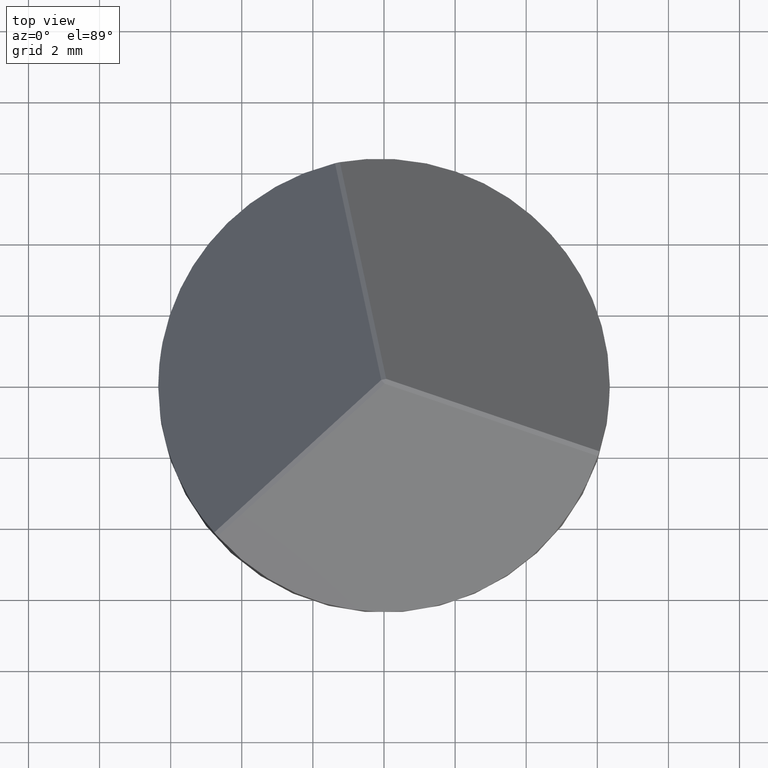
[diagram: clean part render]
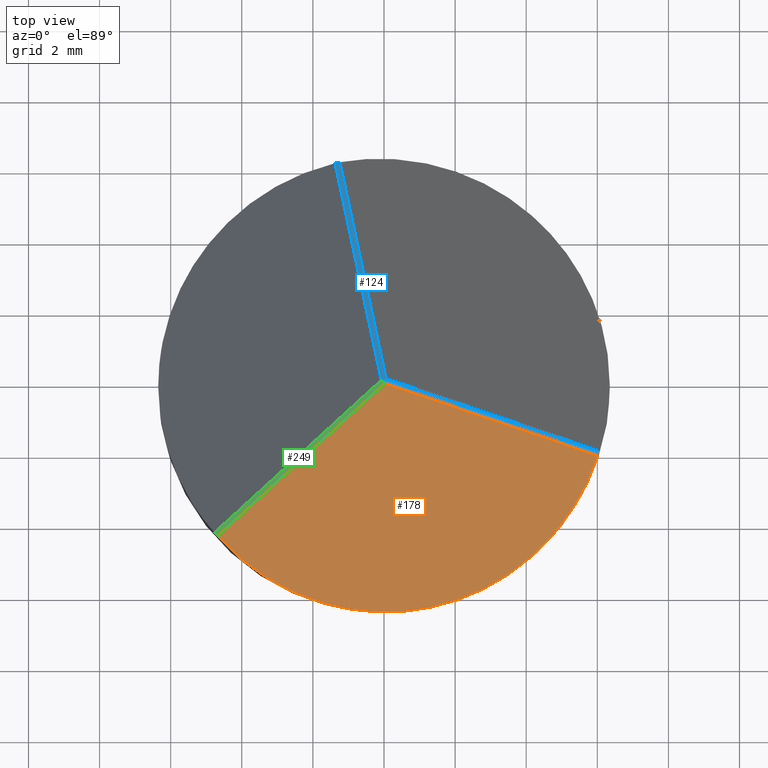
[diagram: same view with three faces highlighted in distinct colors, each labeled with its STEP entity id]
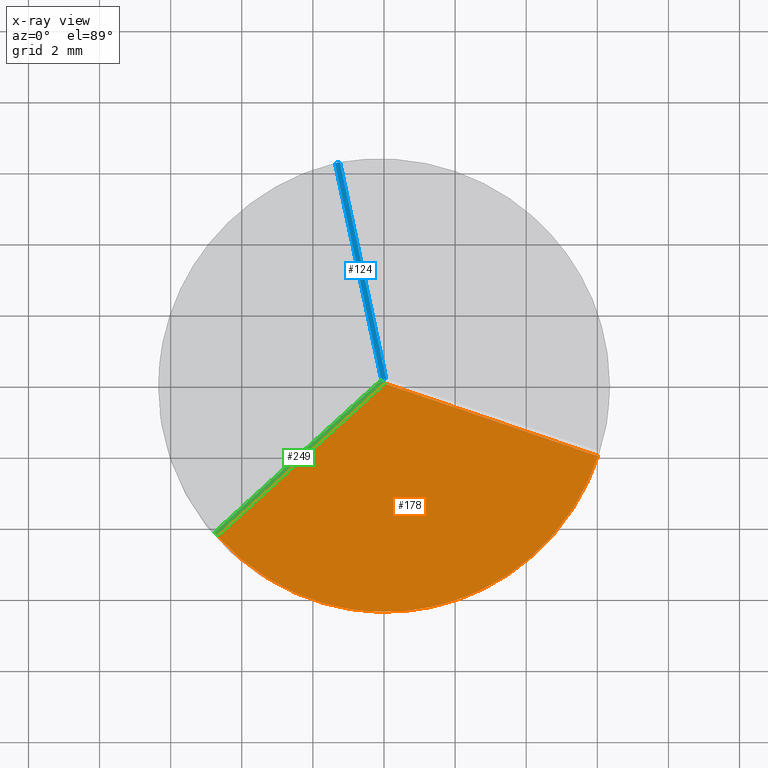
[diagram: x-ray of the same camera — body ghosted, the three highlighted faces saturated]
A machine part, top view with three faces highlighted in distinct colors.
The next image is the same camera in x-ray (body ghosted, the three faces saturated) — at least one of them is partly hidden behind the body in this view.
Their STEP definitions:

[orange] entity #178 — the highlighted planar face has unit normal (0.1684, -0.799, 0.5774).
#1 = ORIENTED_EDGE ( 'NONE', *, *, #110, .T. ) ;
#28 = VERTEX_POINT ( 'NONE', #85 ) ;
#33 = CARTESIAN_POINT ( 'NONE',  ( -1.020309708082631550, -8.280476711917238219, -1.671065411290754588 ) ) ;
#42 = LINE ( 'NONE', #237, #65 ) ;
#50 = ORIENTED_EDGE ( 'NONE', *, *, #364, .T. ) ;
#65 = VECTOR ( 'NONE', #118, 1000.000000000000114 ) ;
#85 = CARTESIAN_POINT ( 'NONE',  ( -4.678904995037512116, -4.293058122994961145, 4.913675856748716875 ) ) ;
#109 = ORIENTED_EDGE ( 'NONE', *, *, #164, .T. ) ;
#110 = EDGE_CURVE ( 'NONE', #28, #151, #148, .T. ) ;
#118 = DIRECTION ( 'NONE',  ( -0.6077332452617947300, -0.5452769656516170960, -0.5773502691896250649 ) ) ;
#126 = FACE_OUTER_BOUND ( 'NONE', #220, .T. ) ;
#140 = CARTESIAN_POINT ( 'NONE',  ( 0.01683570817219707388, -0.07989509119469048737, 9.374658006696643398 ) ) ;
#141 = VECTOR ( 'NONE', #275, 1000.000000000000114 ) ;
#142 = CARTESIAN_POINT ( 'NONE',  ( 6.013412275601540458, -2.039944313858764513, 4.913675856748660919 ) ) ;
#148 =( BOUNDED_CURVE ( )  B_SPLINE_CURVE ( 3, ( #169, #33, #328, #142 ),
 .UNSPECIFIED., .F., .T. ) 
 B_SPLINE_CURVE_WITH_KNOTS ( ( 4, 4 ),
 ( 5.247123525991984394, 7.319247088367180964 ),
 .UNSPECIFIED. ) 
 CURVE ( )  GEOMETRIC_REPRESENTATION_ITEM ( )  RATIONAL_B_SPLINE_CURVE ( ( 1.000000000000000000, 0.6730751062543968155, 0.6730751062543968155, 1.000000000000000000 ) ) 
 REPRESENTATION_ITEM ( '' )  );
#151 = VERTEX_POINT ( 'NONE', #182 ) ;
#154 = CARTESIAN_POINT ( 'NONE',  ( 4.191524909123932829, -1.444439716145159647, 6.269017013437427011 ) ) ;
#164 = EDGE_CURVE ( 'NONE', #151, #256, #279, .T. ) ;
#169 = CARTESIAN_POINT ( 'NONE',  ( -4.678904995037512116, -4.293058122994961145, 4.913675856748716875 ) ) ;
#178 = ADVANCED_FACE ( 'NONE', ( #126 ), #248, .T. ) ;
#182 = CARTESIAN_POINT ( 'NONE',  ( 6.013412275601540458, -2.039944313858764513, 4.913675856748660919 ) ) ;
#215 = DIRECTION ( 'NONE',  ( 0.000000000000000000, -0.5857106597838069861, -0.8105202175242870455 ) ) ;
#220 = EDGE_LOOP ( 'NONE', ( #109, #50, #1 ) ) ;
#237 = CARTESIAN_POINT ( 'NONE',  ( -3.252239202108292648, -3.013009679648221528, 6.269017013437423458 ) ) ;
#244 = AXIS2_PLACEMENT_3D ( 'NONE', #334, #362, #215 ) ;
#248 = PLANE ( 'NONE',  #244 ) ;
#256 = VERTEX_POINT ( 'NONE', #140 ) ;
#275 = DIRECTION ( 'NONE',  ( -0.7760903269836925134, 0.2536739462952641855, 0.5773502691896250649 ) ) ;
#279 = LINE ( 'NONE', #154, #141 ) ;
#328 = CARTESIAN_POINT ( 'NONE',  ( 4.274947424087383041, -7.164645908787123929, -1.671065411290782565 ) ) ;
#334 = CARTESIAN_POINT ( 'NONE',  ( 0.9224499988434438080, -4.377554304598696433, 3.163376020178197301 ) ) ;
#362 = DIRECTION ( 'NONE',  ( 0.1683570817218978666, -0.7989509119468806153, 0.5773502691896265082 ) ) ;
#364 = EDGE_CURVE ( 'NONE', #256, #28, #42, .T. ) ;

[blue] entity #124 — the highlighted planar face has unit normal (0.119, -0.5649, -0.8165).
#11 = DIRECTION ( 'NONE',  ( 0.1190464341463334241, -0.5649436076728147071, -0.8164965809277265896 ) ) ;
#14 = DIRECTION ( 'NONE',  ( 0.1683570817218979776, -0.7989509119468815035, 0.5773502691896249539 ) ) ;
#19 = VERTEX_POINT ( 'NONE', #351 ) ;
#22 = CARTESIAN_POINT ( 'NONE',  ( -1.240062539693429722, 6.227739951029515275, 4.913675856748689341 ) ) ;
#27 = VERTEX_POINT ( 'NONE', #172 ) ;
#37 = EDGE_CURVE ( 'NONE', #195, #135, #349, .T. ) ;
#56 = EDGE_CURVE ( 'NONE', #27, #19, #239, .T. ) ;
#66 = PLANE ( 'NONE',  #202 ) ;
#73 = CARTESIAN_POINT ( 'NONE',  ( -1.378444896918001428, 6.198579649093872490, 4.913675856748705328 ) ) ;
#84 = DIRECTION ( 'NONE',  ( -0.9785110319005749790, -0.2061944724013522467, -0.000000000000000000 ) ) ;
#89 = FACE_OUTER_BOUND ( 'NONE', #181, .T. ) ;
#117 = CARTESIAN_POINT ( 'NONE',  ( -0.8448409661450662078, 4.352186909969163686, 6.269017013437423458 ) ) ;
#124 = ADVANCED_FACE ( 'NONE', ( #89 ), #66, .F. ) ;
#129 = CARTESIAN_POINT ( 'NONE',  ( -1.332426640923746186, 6.208813224159672295, 4.913304656743201271 ) ) ;
#135 = VERTEX_POINT ( 'NONE', #247 ) ;
#138 = EDGE_CURVE ( 'NONE', #19, #195, #188, .T. ) ;
#153 = VECTOR ( 'NONE', #14, 1000.000000000000227 ) ;
#155 = VECTOR ( 'NONE', #84, 1000.000000000000114 ) ;
#160 = ORIENTED_EDGE ( 'NONE', *, *, #138, .F. ) ;
#165 = ORIENTED_EDGE ( 'NONE', *, *, #37, .F. ) ;
#172 = CARTESIAN_POINT ( 'NONE',  ( -0.07760903269836591511, 0.02536739462952482260, 9.374658006696643398 ) ) ;
#181 = EDGE_LOOP ( 'NONE', ( #160, #242, #219, #165 ) ) ;
#187 = CARTESIAN_POINT ( 'NONE',  ( -1.240062539693429722, 6.227739951029515275, 4.913675856748689341 ) ) ;
#188 =( BOUNDED_CURVE ( )  B_SPLINE_CURVE ( 3, ( #73, #129, #336, #22 ),
 .UNSPECIFIED., .F., .F. ) 
 B_SPLINE_CURVE_WITH_KNOTS ( ( 4, 4 ),
 ( 6.272049537170588884, 6.294321077188590685 ),
 .UNSPECIFIED. ) 
 CURVE ( )  GEOMETRIC_REPRESENTATION_ITEM ( )  RATIONAL_B_SPLINE_CURVE ( ( 1.000000000000000000, 0.9999586653025819283, 0.9999586653025819283, 1.000000000000000000 ) ) 
 REPRESENTATION_ITEM ( '' )  );
#195 = VERTEX_POINT ( 'NONE', #187 ) ;
#202 = AXIS2_PLACEMENT_3D ( 'NONE', #259, #11, #245 ) ;
#219 = ORIENTED_EDGE ( 'NONE', *, *, #318, .F. ) ;
#229 = DIRECTION ( 'NONE',  ( -0.1683570817218979776, 0.7989509119468816145, -0.5773502691896250649 ) ) ;
#239 = LINE ( 'NONE', #356, #306 ) ;
#242 = ORIENTED_EDGE ( 'NONE', *, *, #56, .F. ) ;
#245 = DIRECTION ( 'NONE',  ( -0.1683570817218979776, 0.7989509119468816145, -0.5773502691896250649 ) ) ;
#247 = CARTESIAN_POINT ( 'NONE',  ( 0.06077332452618703501, 0.05452769656516021773, 9.374658006696643398 ) ) ;
#259 = CARTESIAN_POINT ( 'NONE',  ( -0.9832233233696184849, 4.323026608033527118, 6.269017013437423458 ) ) ;
#306 = VECTOR ( 'NONE', #229, 1000.000000000000114 ) ;
#318 = EDGE_CURVE ( 'NONE', #135, #27, #323, .T. ) ;
#323 = LINE ( 'NONE', #350, #155 ) ;
#336 = CARTESIAN_POINT ( 'NONE',  ( -1.286297281772450285, 6.218533726598914235, 4.913304656743201271 ) ) ;
#349 = LINE ( 'NONE', #117, #153 ) ;
#350 = CARTESIAN_POINT ( 'NONE',  ( -0.07760903269836591511, 0.02536739462952482260, 9.374658006696643398 ) ) ;
#351 = CARTESIAN_POINT ( 'NONE',  ( -1.378444896918001428, 6.198579649093872490, 4.913675856748705328 ) ) ;
#356 = CARTESIAN_POINT ( 'NONE',  ( -0.9832233233696189290, 4.323026608033527118, 6.269017013437423458 ) ) ;

[green] entity #249 — the highlighted planar face has unit normal (0.4297, 0.3856, -0.8165).
#8 = DIRECTION ( 'NONE',  ( -0.6678251671697869041, 0.7443181753085479357, 0.000000000000000000 ) ) ;
#10 = CARTESIAN_POINT ( 'NONE',  ( -0.07760903269836591511, 0.02536739462952482260, 9.374658006696643398 ) ) ;
#20 = CARTESIAN_POINT ( 'NONE',  ( -3.346683942978853743, -2.907747193824004928, 6.269017013437424346 ) ) ;
#27 = VERTEX_POINT ( 'NONE', #172 ) ;
#28 = VERTEX_POINT ( 'NONE', #85 ) ;
#31 = EDGE_CURVE ( 'NONE', #28, #273, #74, .T. ) ;
#34 = AXIS2_PLACEMENT_3D ( 'NONE', #113, #230, #293 ) ;
#42 = LINE ( 'NONE', #237, #65 ) ;
#49 = VECTOR ( 'NONE', #102, 999.9999999999998863 ) ;
#53 = EDGE_LOOP ( 'NONE', ( #316, #282, #162, #284 ) ) ;
#61 = CARTESIAN_POINT ( 'NONE',  ( -4.742259540638738002, -4.223232986133282019, 4.913304656743202159 ) ) ;
#65 = VECTOR ( 'NONE', #118, 1000.000000000000114 ) ;
#74 =( BOUNDED_CURVE ( )  B_SPLINE_CURVE ( 3, ( #207, #295, #61, #208 ),
 .UNSPECIFIED., .F., .T. ) 
 B_SPLINE_CURVE_WITH_KNOTS ( ( 4, 4 ),
 ( 6.272049537170585332, 6.294321077188586244 ),
 .UNSPECIFIED. ) 
 CURVE ( )  GEOMETRIC_REPRESENTATION_ITEM ( )  RATIONAL_B_SPLINE_CURVE ( ( 1.000000000000000000, 0.9999586653025819283, 0.9999586653025819283, 1.000000000000000000 ) ) 
 REPRESENTATION_ITEM ( '' )  );
#85 = CARTESIAN_POINT ( 'NONE',  ( -4.678904995037512116, -4.293058122994961145, 4.913675856748716875 ) ) ;
#102 = DIRECTION ( 'NONE',  ( 0.6077332452617947300, 0.5452769656516172070, 0.5773502691896250649 ) ) ;
#113 = CARTESIAN_POINT ( 'NONE',  ( -3.252239202108292648, -3.013009679648221972, 6.269017013437423458 ) ) ;
#118 = DIRECTION ( 'NONE',  ( -0.6077332452617947300, -0.5452769656516170960, -0.5773502691896250649 ) ) ;
#140 = CARTESIAN_POINT ( 'NONE',  ( 0.01683570817219707388, -0.07989509119469048737, 9.374658006696643398 ) ) ;
#152 = LINE ( 'NONE', #20, #49 ) ;
#162 = ORIENTED_EDGE ( 'NONE', *, *, #31, .F. ) ;
#172 = CARTESIAN_POINT ( 'NONE',  ( -0.07760903269836591511, 0.02536739462952482260, 9.374658006696643398 ) ) ;
#175 = LINE ( 'NONE', #10, #360 ) ;
#196 = EDGE_CURVE ( 'NONE', #273, #27, #152, .T. ) ;
#200 = FACE_OUTER_BOUND ( 'NONE', #53, .T. ) ;
#205 = PLANE ( 'NONE',  #34 ) ;
#207 = CARTESIAN_POINT ( 'NONE',  ( -4.678904995037512116, -4.293058122994961145, 4.913675856748716875 ) ) ;
#208 = CARTESIAN_POINT ( 'NONE',  ( -4.773349735908087865, -4.187795637170729002, 4.913675856748678683 ) ) ;
#227 = CARTESIAN_POINT ( 'NONE',  ( -4.773349735908087865, -4.187795637170729002, 4.913675856748678683 ) ) ;
#230 = DIRECTION ( 'NONE',  ( 0.4297322988771206664, 0.3855690400370828663, -0.8164965809277265896 ) ) ;
#237 = CARTESIAN_POINT ( 'NONE',  ( -3.252239202108292648, -3.013009679648221528, 6.269017013437423458 ) ) ;
#249 = ADVANCED_FACE ( 'NONE', ( #200 ), #205, .F. ) ;
#256 = VERTEX_POINT ( 'NONE', #140 ) ;
#260 = EDGE_CURVE ( 'NONE', #256, #27, #175, .T. ) ;
#273 = VERTEX_POINT ( 'NONE', #227 ) ;
#282 = ORIENTED_EDGE ( 'NONE', *, *, #196, .F. ) ;
#284 = ORIENTED_EDGE ( 'NONE', *, *, #364, .F. ) ;
#293 = DIRECTION ( 'NONE',  ( -0.6077332452617947300, -0.5452769656516170960, -0.5773502691896250649 ) ) ;
#295 = CARTESIAN_POINT ( 'NONE',  ( -4.710776659013159673, -4.258321931798978888, 4.913304656743202159 ) ) ;
#316 = ORIENTED_EDGE ( 'NONE', *, *, #260, .T. ) ;
#360 = VECTOR ( 'NONE', #8, 1000.000000000000000 ) ;
#364 = EDGE_CURVE ( 'NONE', #256, #28, #42, .T. ) ;